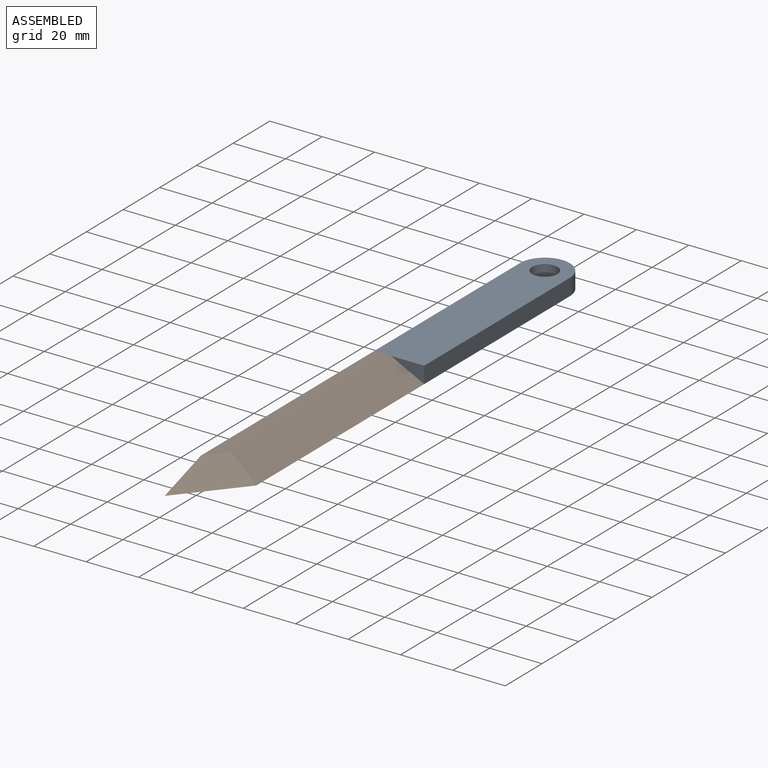
[diagram: assembled view]
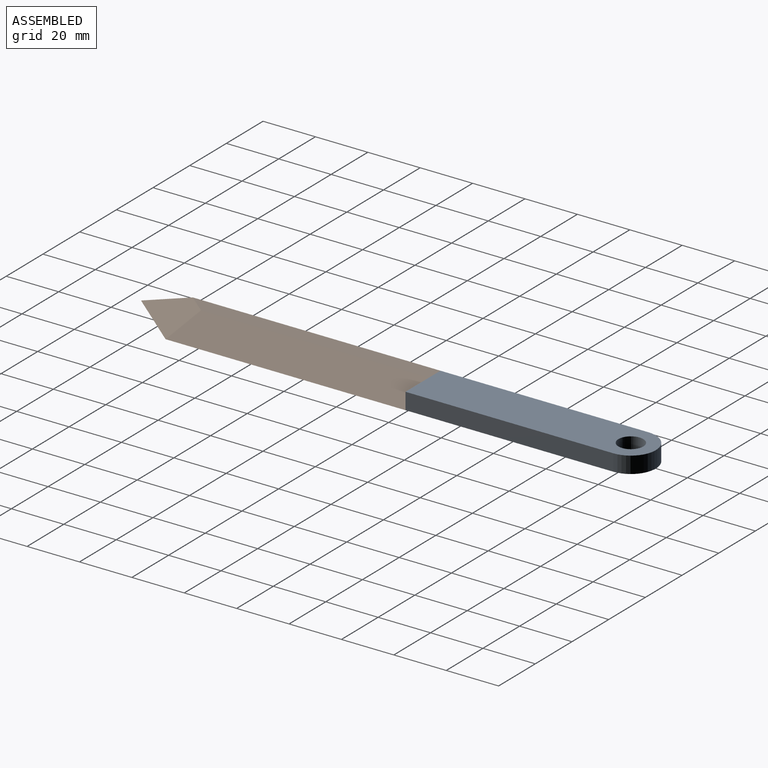
[diagram: assembled view, second angle]
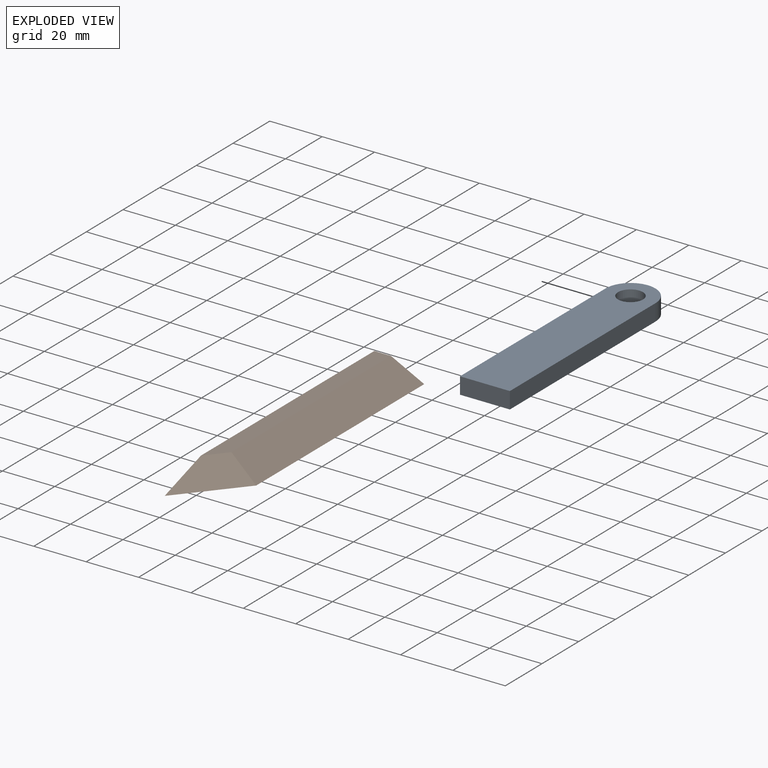
[diagram: exploded view]
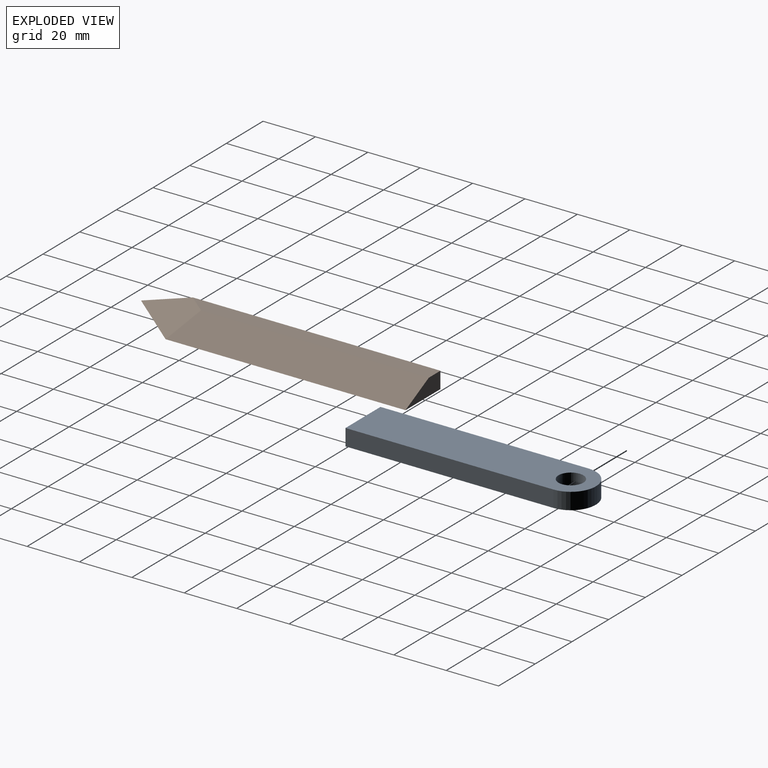
[diagram: exploded view, second angle]
ASSEMBLY  parts=2 mates=2
PART A: 7 faces, bbox 19.1x88.9x6.4 mm
  f0: plane 19.05x6.35mm, normal (0,-1,0), area 121mm2, adj f1,f3,f5,f6
  f1: plane 79.38x6.35mm, normal (1,0,0), area 504mm2, adj f0,f2,f5,f6
  f2: cylinder r=9.53mm len=19.05mm, axis (0,0,-1), area 190mm2, adj f1,f3,f5,f6
  f3: plane 79.38x6.35mm, normal (-1,0,0), area 504mm2, adj f0,f2,f5,f6
  f4: cylinder r=4.76mm len=9.53mm, axis (0,0,-1), area 190mm2, adj f5,f6
  f5: plane 88.9x19.05mm, normal (0,0,1), area 1583.3mm2, adj f0,f1,f2,f3,f4
  f6: plane 88.9x19.05mm, normal (0,0,-1), area 1583.3mm2, adj f0,f1,f2,f3,f4
PART B: 6 faces, bbox 19.1x114.3x6.4 mm
  f0: plane 19.05x6.35mm, normal (0,1,0), area 80.6mm2, adj f1,f2,f3,f5
  f1: plane 114.3x6.35mm, normal (-1,0,0), area 663.1mm2, adj f0,f2,f3,f4
  f2: plane 94.54x6.35mm, normal (0,0,1), area 576.3mm2, adj f0,f1,f4,f5
  f3: plane 114.3x19.05mm, normal (0,0,-1), area 1961.2mm2, adj f0,f1,f4,f5
  f4: plane 27.33x19.05mm, normal (0.34,-0.29,0.89), area 280.5mm2, adj f1,f2,f3,f5
  f5: plane 91.6x12.7mm, normal (0.45,0,0.89), area 1267.8mm2, adj f0,f2,f3,f4
PLACE A t=(-4.08,-37.09,13.73)mm
PLACE B t=(-4.08,-37.09,13.73)mm
MATE slider B.f1 <-> A.f3  axis (-1,0,0) through (-4.08,-37.09,16.9)mm
MATE planar A.f3 <-> B.f1  axis (-1,0,0) through (-4.08,-37.09,13.73)mm
